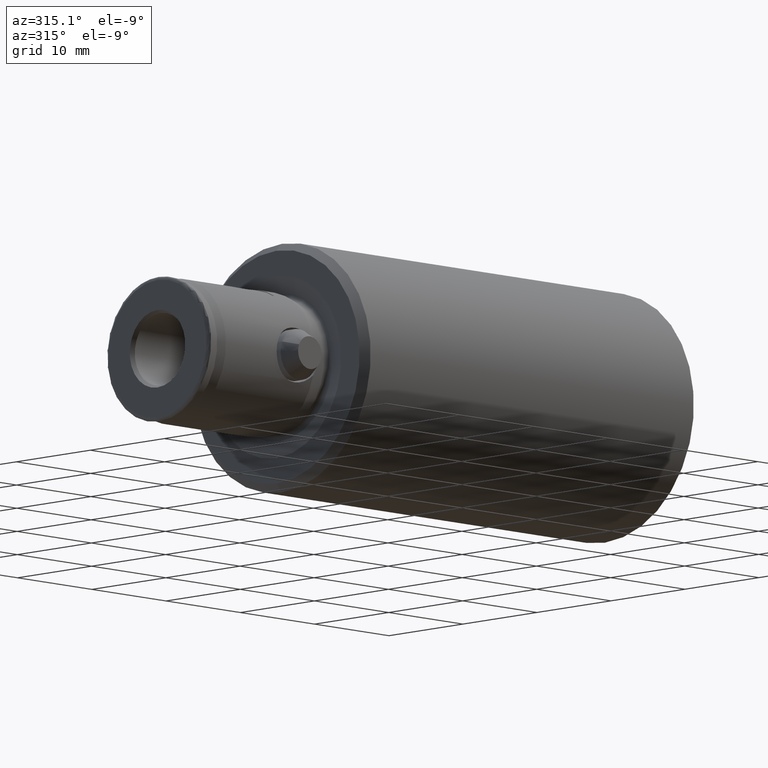
[diagram: clean part render]
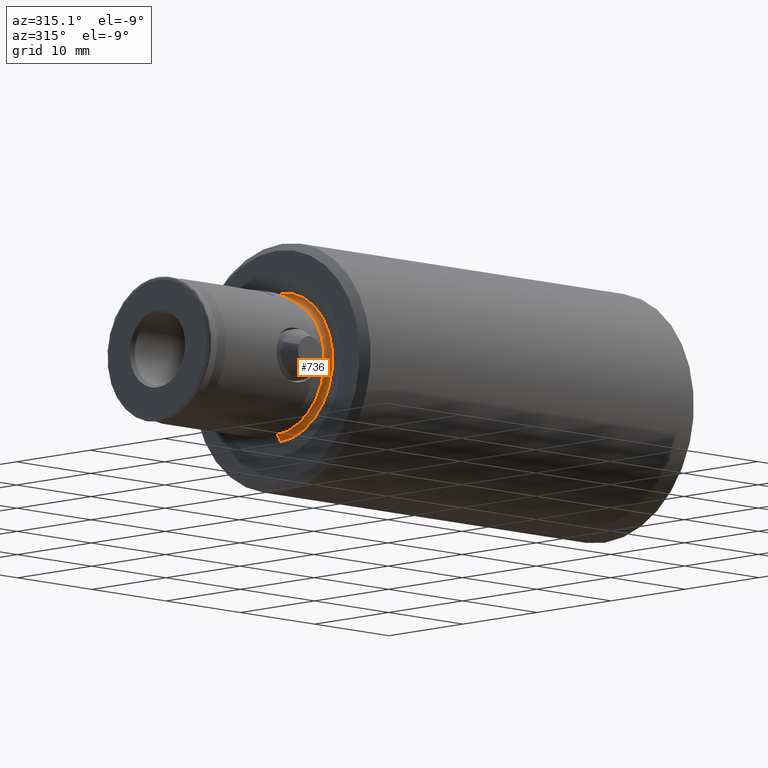
[diagram: same view with one face highlighted and labeled with its STEP entity id]
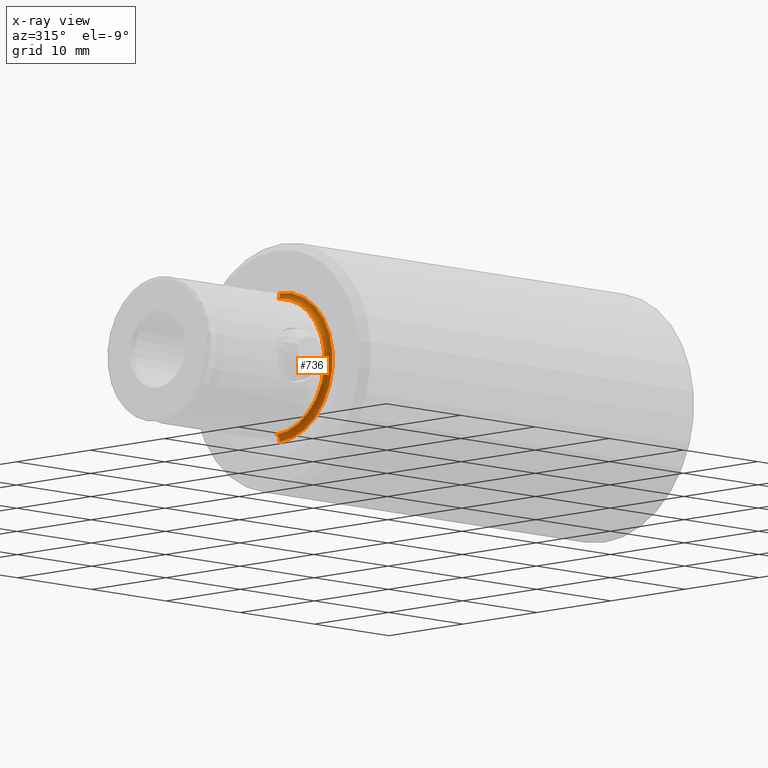
[diagram: x-ray of the same camera — body ghosted, the highlighted face saturated]
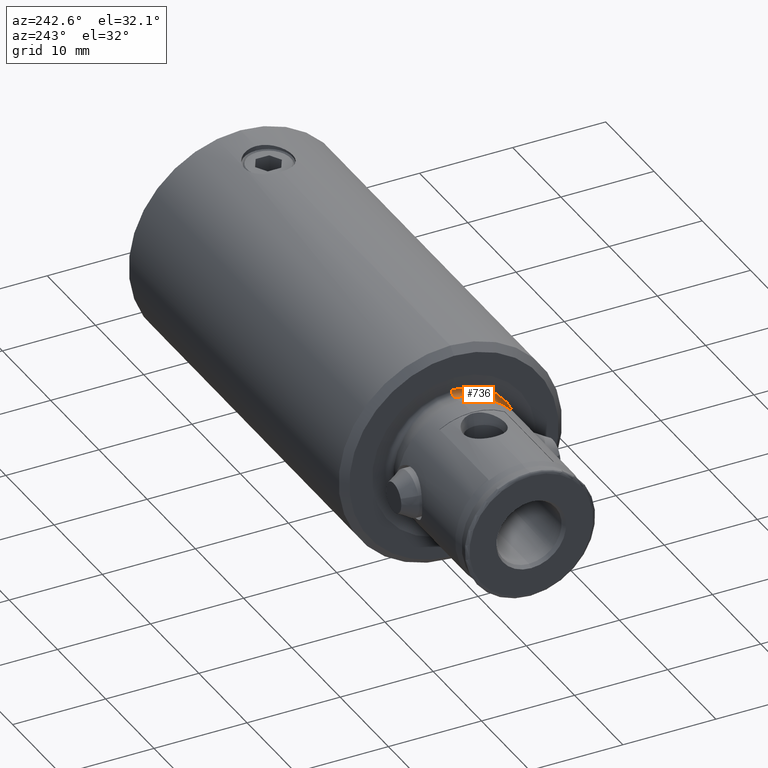
[diagram: same view with one face highlighted and labeled with its STEP entity id]
A machine part, auxiliary view. The second image highlights one B-rep face of the part: STEP entity #736.
The next image is the same camera in x-ray: the body ghosted, the highlighted face saturated — about 0% of this face is hidden behind the body in this view.
A second angle (auxiliary view) of the same face is appended — the face is thin or edge-on in the first view.
In plain terms, the highlighted toroidal blend (fillet) surface has major radius 7.05 mm and minor (blend) radius 0.5 mm.
Its self-contained STEP definition (entity closure, byte-faithful):
#70 = VERTEX_POINT ( 'NONE', #3522 ) ;
#113 = CARTESIAN_POINT ( 'NONE',  ( 0.0000000000000000000, 0.0000000000000000000, 45.04999999999999700 ) ) ;
#313 = CIRCLE ( 'NONE', #2381, 7.179409522551257100 ) ;
#367 = CARTESIAN_POINT ( 'NONE',  ( 0.0000000000000000000, 0.0000000000000000000, 45.04999999999999700 ) ) ;
#425 = DIRECTION ( 'NONE',  ( -1.000000000000000000, 0.0000000000000000000, 0.0000000000000000000 ) ) ;
#517 = VERTEX_POINT ( 'NONE', #591 ) ;
#521 = EDGE_CURVE ( 'NONE', #70, #4074, #947, .T. ) ;
#574 = TOROIDAL_SURFACE ( 'NONE', #3332, 7.049999999999999800, 0.4999999999999992800 ) ;
#591 = CARTESIAN_POINT ( 'NONE',  ( 6.550000000000000700, 8.021436534415164200E-016, 45.04999999999999700 ) ) ;
#736 = ADVANCED_FACE ( 'NONE', ( #3716 ), #574, .F. ) ;
#750 = CARTESIAN_POINT ( 'NONE',  ( 7.049999999999999800, 8.633759933988840000E-016, 45.04999999999999700 ) ) ;
#901 = EDGE_CURVE ( 'NONE', #2793, #70, #313, .T. ) ;
#947 = CIRCLE ( 'NONE', #3413, 0.5000000000000004400 ) ;
#1035 = AXIS2_PLACEMENT_3D ( 'NONE', #750, #3021, #1076 ) ;
#1076 = DIRECTION ( 'NONE',  ( -1.000000000000000000, -1.224646799147353500E-016, 0.0000000000000000000 ) ) ;
#1581 = CARTESIAN_POINT ( 'NONE',  ( 0.0000000000000000000, 0.0000000000000000000, 44.56703708685546400 ) ) ;
#1617 = ORIENTED_EDGE ( 'NONE', *, *, #3805, .T. ) ;
#1912 = DIRECTION ( 'NONE',  ( -1.000000000000000000, 0.0000000000000000000, 0.0000000000000000000 ) ) ;
#1919 = CARTESIAN_POINT ( 'NONE',  ( -7.049999999999999800, 0.0000000000000000000, 45.04999999999999700 ) ) ;
#2028 = CARTESIAN_POINT ( 'NONE',  ( 7.179409522551257100, 0.0000000000000000000, 44.56703708685546400 ) ) ;
#2250 = DIRECTION ( 'NONE',  ( 0.0000000000000000000, 0.0000000000000000000, -1.000000000000000000 ) ) ;
#2307 = EDGE_CURVE ( 'NONE', #517, #4074, #3250, .T. ) ;
#2362 = AXIS2_PLACEMENT_3D ( 'NONE', #113, #2402, #425 ) ;
#2381 = AXIS2_PLACEMENT_3D ( 'NONE', #1581, #3862, #1912 ) ;
#2402 = DIRECTION ( 'NONE',  ( -0.0000000000000000000, -0.0000000000000000000, -1.000000000000000000 ) ) ;
#2473 = CARTESIAN_POINT ( 'NONE',  ( -6.550000000000000700, 0.0000000000000000000, 45.04999999999999700 ) ) ;
#2540 = EDGE_LOOP ( 'NONE', ( #1617, #3950, #3397, #3273 ) ) ;
#2676 = DIRECTION ( 'NONE',  ( -0.0000000000000000000, -0.0000000000000000000, -1.000000000000000000 ) ) ;
#2793 = VERTEX_POINT ( 'NONE', #2028 ) ;
#2923 = CIRCLE ( 'NONE', #1035, 0.4999999999999995600 ) ;
#2989 = DIRECTION ( 'NONE',  ( -1.000000000000000000, 0.0000000000000000000, 0.0000000000000000000 ) ) ;
#3021 = DIRECTION ( 'NONE',  ( -1.224646799147353200E-016, 1.000000000000000000, 0.0000000000000000000 ) ) ;
#3250 = CIRCLE ( 'NONE', #2362, 6.550000000000000700 ) ;
#3273 = ORIENTED_EDGE ( 'NONE', *, *, #901, .F. ) ;
#3332 = AXIS2_PLACEMENT_3D ( 'NONE', #367, #2676, #2989 ) ;
#3397 = ORIENTED_EDGE ( 'NONE', *, *, #521, .F. ) ;
#3413 = AXIS2_PLACEMENT_3D ( 'NONE', #1919, #4208, #2250 ) ;
#3522 = CARTESIAN_POINT ( 'NONE',  ( -7.179409522551257100, 9.781657282259712000E-016, 44.56703708685546400 ) ) ;
#3716 = FACE_OUTER_BOUND ( 'NONE', #2540, .T. ) ;
#3805 = EDGE_CURVE ( 'NONE', #2793, #517, #2923, .T. ) ;
#3862 = DIRECTION ( 'NONE',  ( -0.0000000000000000000, -0.0000000000000000000, -1.000000000000000000 ) ) ;
#3950 = ORIENTED_EDGE ( 'NONE', *, *, #2307, .T. ) ;
#4074 = VERTEX_POINT ( 'NONE', #2473 ) ;
#4208 = DIRECTION ( 'NONE',  ( 0.0000000000000000000, -1.000000000000000000, 0.0000000000000000000 ) ) ;